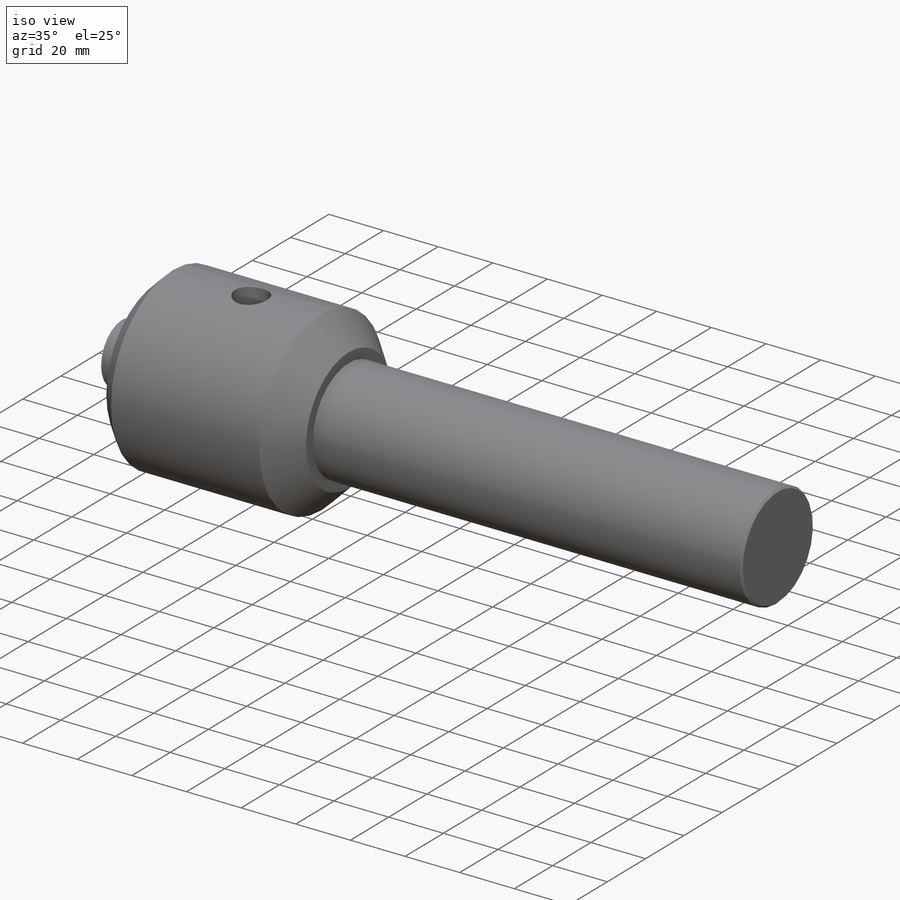
[diagram: iso view]
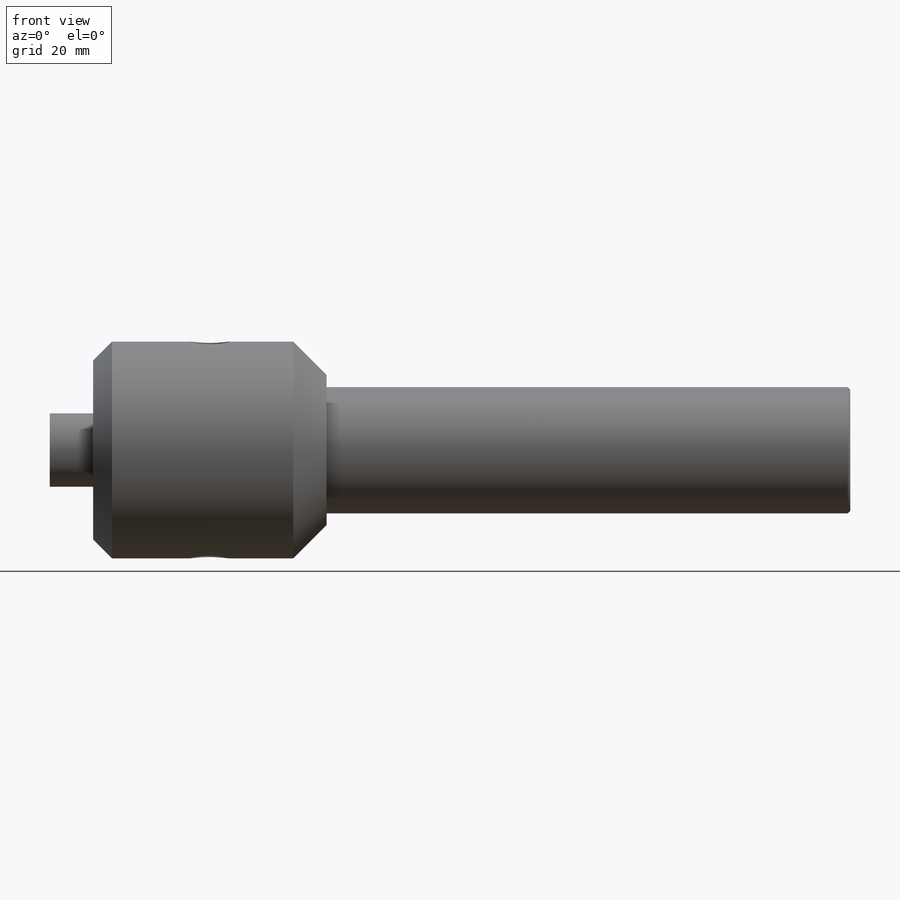
[diagram: front view]
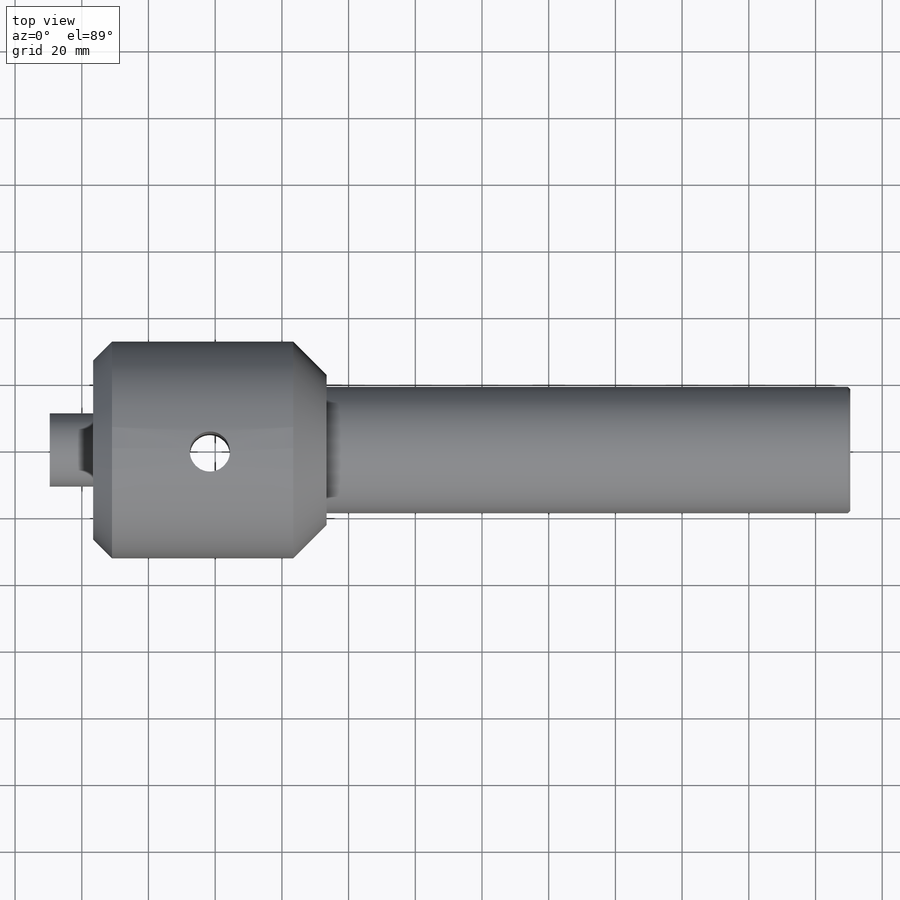
[diagram: top view]
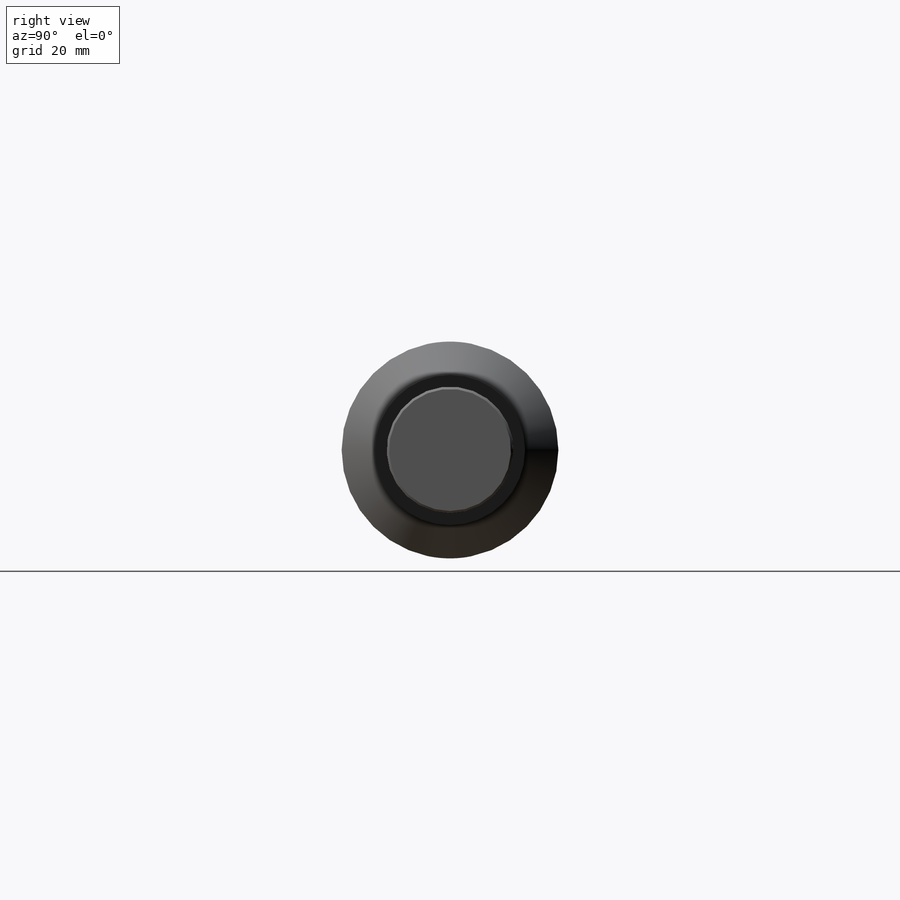
[diagram: right view]
SOLIDWORKS PART (.sldprt)
format: sldprt  version: not decoded by parser v0  size: 284,672 bytes
history: native  units: mm
features: sketch x5, cut_extrude x3, material x1, revolve x1, thread x1 (+13 scaffold rows collapsed)
feature tree (24):
  scaffold x13  (default folders/planes/origin — collapsed)
  material  "Material <not specified>"
  sketch  "Sketch1"  dims[c1.D12=6.0mm c1.D1=~2.701502mm c2.D1=45.0deg c2.D2=1.0mm c2.19=19.0mm c2.D3=32.5mm c2.D4=11.0mm c2.D5=13.0mm c2.D6=10.0mm c2.D7=240.0mm c2.D8=~8.42154mm c3.D8=45.0deg c3.D9=32.5mm c3.D10=~8.023053mm c3.D11=83.0mm c3.D13=35.0mm c3.D14=~57.255777mm c3.D6=10.0mm c4.D14=3.0mm]
  revolve  "Revolve2"  [1 undecoded]
  thread  "Cosmetic Thread1"  Diameter=37mm  [1 undecoded]
  sketch  "Sketch2"  dims[D2=12.0mm D1=35.0mm]
  cut_extrude  "Cut-Extrude1"  Depth=10mm
  sketch  "Sketch3"  dims[D1=12.0mm]
  cut_extrude  "Cut-Extrude2"  Depth=30mm
  sketch  "Sketch4"  dims[D1=11.0mm]
  sketch  "Sketch5"  dims[D1=11.0mm]
  cut_extrude  "Cut-Extrude4"  Depth=5mm
decode coverage: 9 of 10 modeling features carry decoded parameters
note: ~ marks probable driven/reference dimensions
note: 2 parameter values undecoded
note: suppression state not decoded; provenance and decode notes live in map.json
